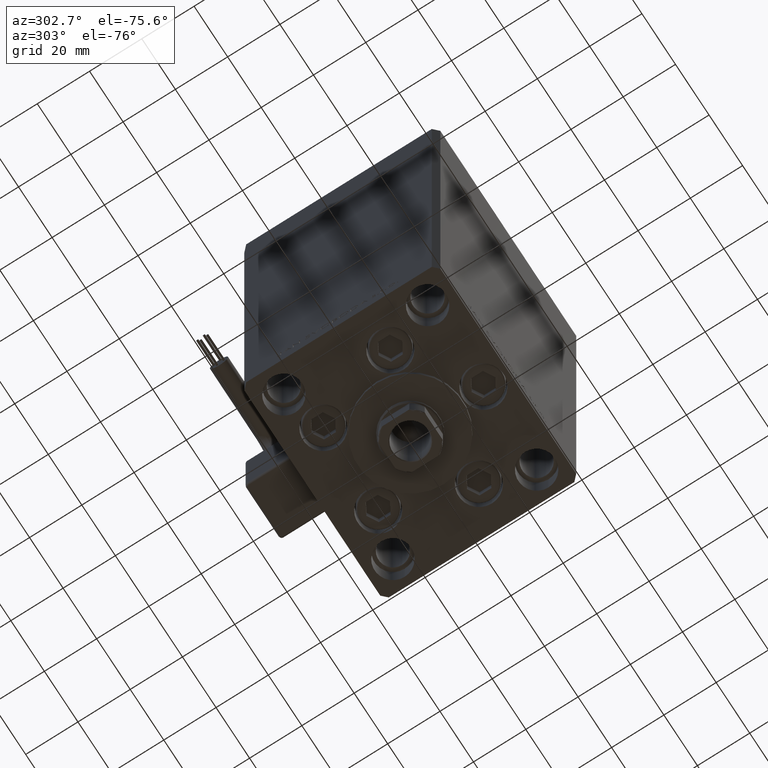
[diagram: clean part render]
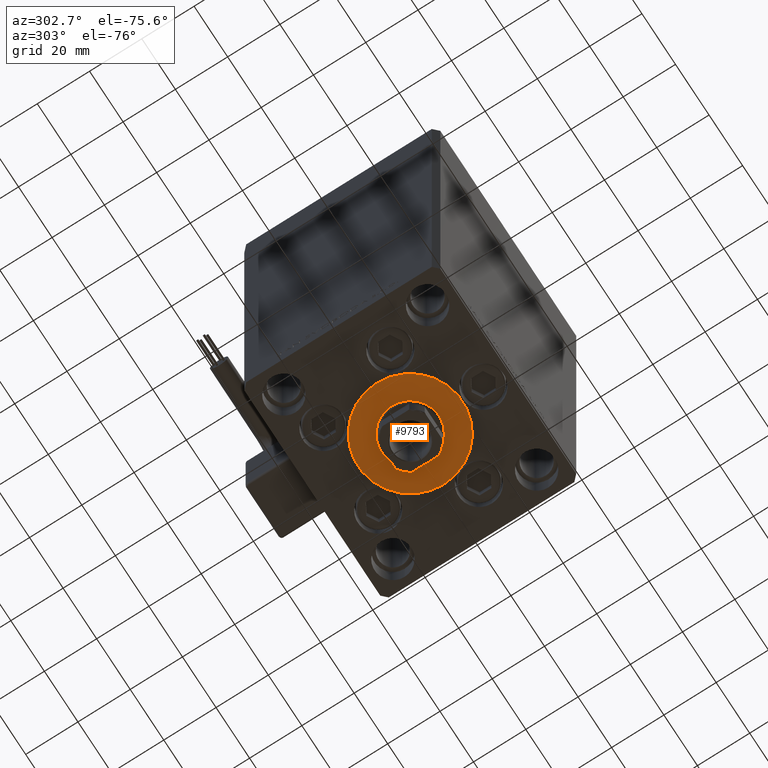
[diagram: same view with one face highlighted and labeled with its STEP entity id]
A machine part, auxiliary view. The second image highlights one B-rep face of the part: STEP entity #9793.
In plain terms, the highlighted planar face has unit normal (0, 0, -1).
Its self-contained STEP definition (entity closure, byte-faithful):
#14 = CARTESIAN_POINT ( 'NONE',  ( 0.000000000000000000, -6.938893903907228378E-15, 2.000000000000000000 ) ) ;
#1339 = EDGE_LOOP ( 'NONE', ( #7389, #40477 ) ) ;
#1455 = AXIS2_PLACEMENT_3D ( 'NONE', #14, #40698, #20624 ) ;
#1960 = CARTESIAN_POINT ( 'NONE',  ( -11.00000000000000000, -5.591782424845139381E-15, 2.000000000000000000 ) ) ;
#2611 = EDGE_LOOP ( 'NONE', ( #30220, #37354 ) ) ;
#6352 = VERTEX_POINT ( 'NONE', #32201 ) ;
#6746 = CIRCLE ( 'NONE', #48915, 20.00000000000000000 ) ;
#7389 = ORIENTED_EDGE ( 'NONE', *, *, #34506, .F. ) ;
#8163 = VERTEX_POINT ( 'NONE', #43627 ) ;
#8182 = CIRCLE ( 'NONE', #51237, 11.00000000000000000 ) ;
#8919 = CARTESIAN_POINT ( 'NONE',  ( 0.000000000000000000, -6.938893903907228378E-15, 2.000000000000000000 ) ) ;
#9793 = ADVANCED_FACE ( 'NONE', ( #48469, #32102 ), #43261, .T. ) ;
#10291 = AXIS2_PLACEMENT_3D ( 'NONE', #8919, #49078, #12881 ) ;
#12800 = CARTESIAN_POINT ( 'NONE',  ( 0.000000000000000000, -6.938893903907228378E-15, 2.000000000000000000 ) ) ;
#12881 = DIRECTION ( 'NONE',  ( 1.000000000000000000, 0.000000000000000000, 0.000000000000000000 ) ) ;
#18435 = DIRECTION ( 'NONE',  ( 1.000000000000000000, 0.000000000000000000, 0.000000000000000000 ) ) ;
#18953 = DIRECTION ( 'NONE',  ( 0.000000000000000000, 0.000000000000000000, 1.000000000000000000 ) ) ;
#19872 = VERTEX_POINT ( 'NONE', #36458 ) ;
#20361 = VERTEX_POINT ( 'NONE', #1960 ) ;
#20624 = DIRECTION ( 'NONE',  ( 1.000000000000000000, 0.000000000000000000, 0.000000000000000000 ) ) ;
#22714 = EDGE_CURVE ( 'NONE', #20361, #8163, #52062, .T. ) ;
#26298 = AXIS2_PLACEMENT_3D ( 'NONE', #12800, #18953, #45021 ) ;
#29609 = CIRCLE ( 'NONE', #10291, 20.00000000000000000 ) ;
#30220 = ORIENTED_EDGE ( 'NONE', *, *, #39853, .T. ) ;
#30607 = CARTESIAN_POINT ( 'NONE',  ( 0.000000000000000000, -6.938893903907228378E-15, 2.000000000000000000 ) ) ;
#32102 = FACE_OUTER_BOUND ( 'NONE', #2611, .T. ) ;
#32201 = CARTESIAN_POINT ( 'NONE',  ( -20.00000000000000000, -6.938893903907228378E-15, 2.000000000000000000 ) ) ;
#34244 = DIRECTION ( 'NONE',  ( 1.000000000000000000, 0.000000000000000000, 0.000000000000000000 ) ) ;
#34506 = EDGE_CURVE ( 'NONE', #8163, #20361, #8182, .T. ) ;
#34813 = DIRECTION ( 'NONE',  ( 0.000000000000000000, 0.000000000000000000, 1.000000000000000000 ) ) ;
#36458 = CARTESIAN_POINT ( 'NONE',  ( 20.00000000000000000, -4.489600305612522259E-15, 2.000000000000000000 ) ) ;
#37354 = ORIENTED_EDGE ( 'NONE', *, *, #44741, .T. ) ;
#38217 = DIRECTION ( 'NONE',  ( 0.000000000000000000, 0.000000000000000000, 1.000000000000000000 ) ) ;
#38979 = CARTESIAN_POINT ( 'NONE',  ( 0.000000000000000000, -6.938893903907228378E-15, 2.000000000000000000 ) ) ;
#39853 = EDGE_CURVE ( 'NONE', #6352, #19872, #6746, .T. ) ;
#40477 = ORIENTED_EDGE ( 'NONE', *, *, #22714, .F. ) ;
#40698 = DIRECTION ( 'NONE',  ( 0.000000000000000000, 0.000000000000000000, 1.000000000000000000 ) ) ;
#43261 = PLANE ( 'NONE',  #26298 ) ;
#43627 = CARTESIAN_POINT ( 'NONE',  ( 11.00000000000000000, -6.938893903907228378E-15, 2.000000000000000000 ) ) ;
#44741 = EDGE_CURVE ( 'NONE', #19872, #6352, #29609, .T. ) ;
#45021 = DIRECTION ( 'NONE',  ( 1.000000000000000000, 0.000000000000000000, -0.000000000000000000 ) ) ;
#48469 = FACE_BOUND ( 'NONE', #1339, .T. ) ;
#48915 = AXIS2_PLACEMENT_3D ( 'NONE', #30607, #34813, #18435 ) ;
#49078 = DIRECTION ( 'NONE',  ( 0.000000000000000000, 0.000000000000000000, 1.000000000000000000 ) ) ;
#51237 = AXIS2_PLACEMENT_3D ( 'NONE', #38979, #38217, #34244 ) ;
#52062 = CIRCLE ( 'NONE', #1455, 11.00000000000000000 ) ;